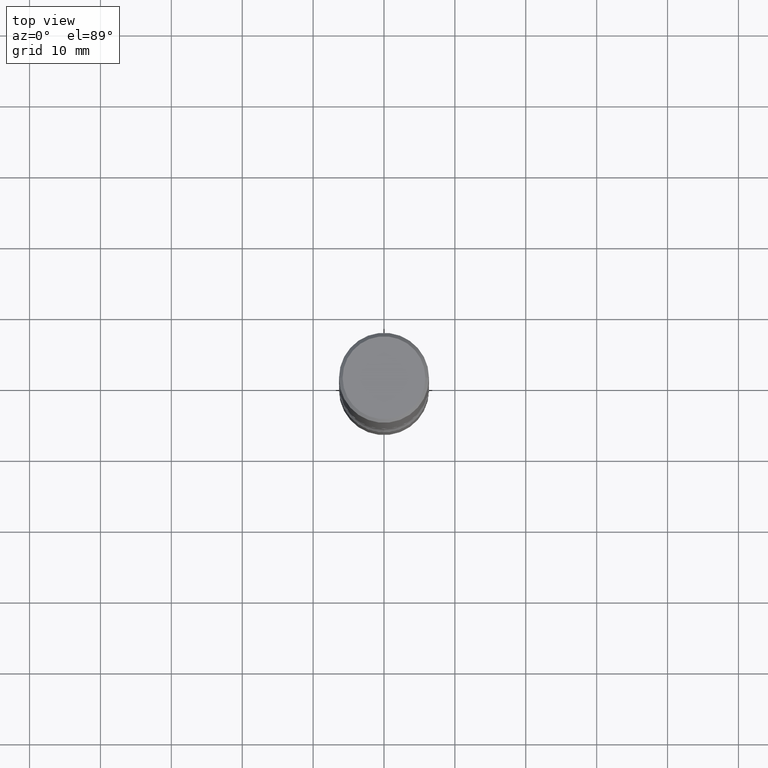
[diagram: clean part render]
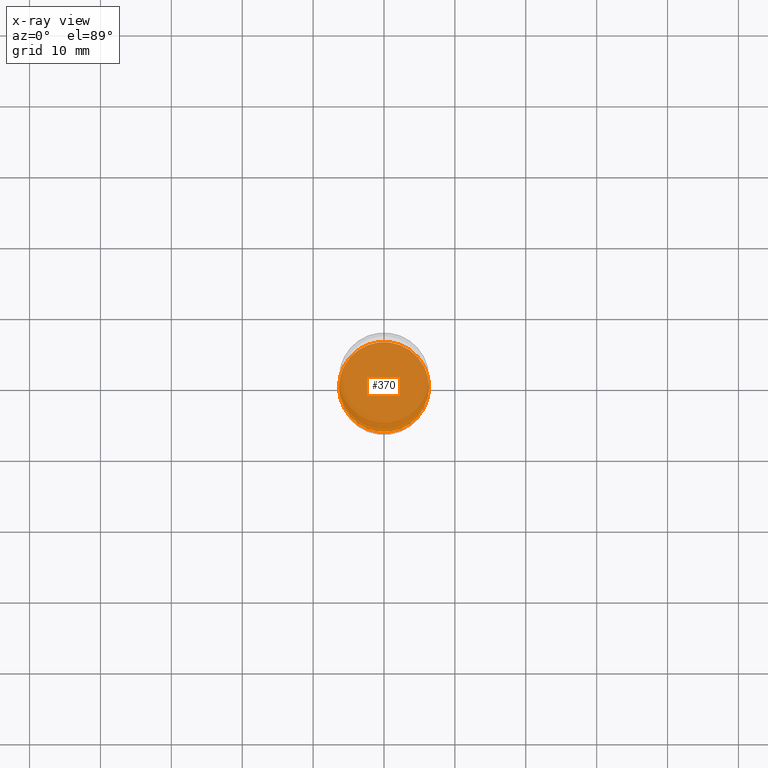
[diagram: x-ray — body ghosted, one internal face saturated and labeled with its STEP entity id]
A machine part, top view, then the same camera in x-ray: the body is ghosted and one INTERNAL B-rep face — a face not visible from any outside direction — is saturated and labeled: STEP entity #370.
In plain terms, the highlighted planar face has unit normal (0, -0, -1).
Its self-contained STEP definition (entity closure, byte-faithful):
#2 = DIRECTION ( 'NONE',  ( -2.445468806185136597E-29, 3.491481338843145583E-15, 1.000000000000000000 ) ) ;
#4 = FACE_OUTER_BOUND ( 'NONE', #168, .T. ) ;
#11 = AXIS2_PLACEMENT_3D ( 'NONE', #12, #45, #53 ) ;
#12 = CARTESIAN_POINT ( 'NONE',  ( 7.336406418555409790E-29, -1.047444401652943635E-14, -3.000000000000000444 ) ) ;
#37 = ORIENTED_EDGE ( 'NONE', *, *, #378, .T. ) ;
#45 = DIRECTION ( 'NONE',  ( -2.445468806185136597E-29, 3.491481338843145583E-15, 1.000000000000000000 ) ) ;
#53 = DIRECTION ( 'NONE',  ( 1.000000000000000000, -6.982962677686270655E-15, 0.000000000000000000 ) ) ;
#56 = DIRECTION ( 'NONE',  ( -1.000000000000000000, 6.982962677686265922E-15, -4.876176775795935793E-29 ) ) ;
#72 = ORIENTED_EDGE ( 'NONE', *, *, #268, .T. ) ;
#79 = CARTESIAN_POINT ( 'NONE',  ( 0.2500000000000002776, -1.222018468595100619E-14, -3.000000000000000444 ) ) ;
#167 = VERTEX_POINT ( 'NONE', #79 ) ;
#168 = EDGE_LOOP ( 'NONE', ( #72, #37 ) ) ;
#171 = DIRECTION ( 'NONE',  ( 1.000000000000000000, -6.982962677686270655E-15, 0.000000000000000000 ) ) ;
#189 = CIRCLE ( 'NONE', #11, 0.2500000000000002776 ) ;
#264 = DIRECTION ( 'NONE',  ( 2.438088387897960049E-29, -3.491481338843145188E-15, -1.000000000000000000 ) ) ;
#268 = EDGE_CURVE ( 'NONE', #167, #519, #189, .T. ) ;
#298 = AXIS2_PLACEMENT_3D ( 'NONE', #530, #2, #171 ) ;
#362 = CIRCLE ( 'NONE', #298, 0.2500000000000002776 ) ;
#370 = ADVANCED_FACE ( 'NONE', ( #4 ), #439, .F. ) ;
#375 = CARTESIAN_POINT ( 'NONE',  ( -0.2500000000000002776, -1.033908340638546235E-14, -3.000000000000000444 ) ) ;
#378 = EDGE_CURVE ( 'NONE', #519, #167, #362, .T. ) ;
#439 = PLANE ( 'NONE',  #450 ) ;
#450 = AXIS2_PLACEMENT_3D ( 'NONE', #478, #264, #56 ) ;
#478 = CARTESIAN_POINT ( 'NONE',  ( 7.336406418555409790E-29, -1.047444401652943635E-14, -3.000000000000000444 ) ) ;
#519 = VERTEX_POINT ( 'NONE', #375 ) ;
#530 = CARTESIAN_POINT ( 'NONE',  ( 7.336406418555409790E-29, -1.047444401652943635E-14, -3.000000000000000444 ) ) ;